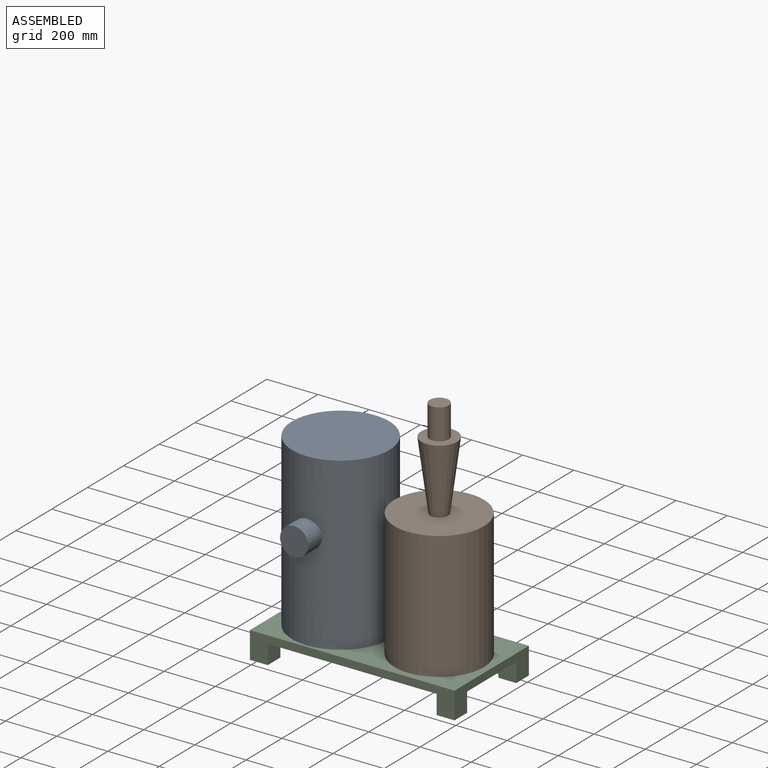
[diagram: assembled view]
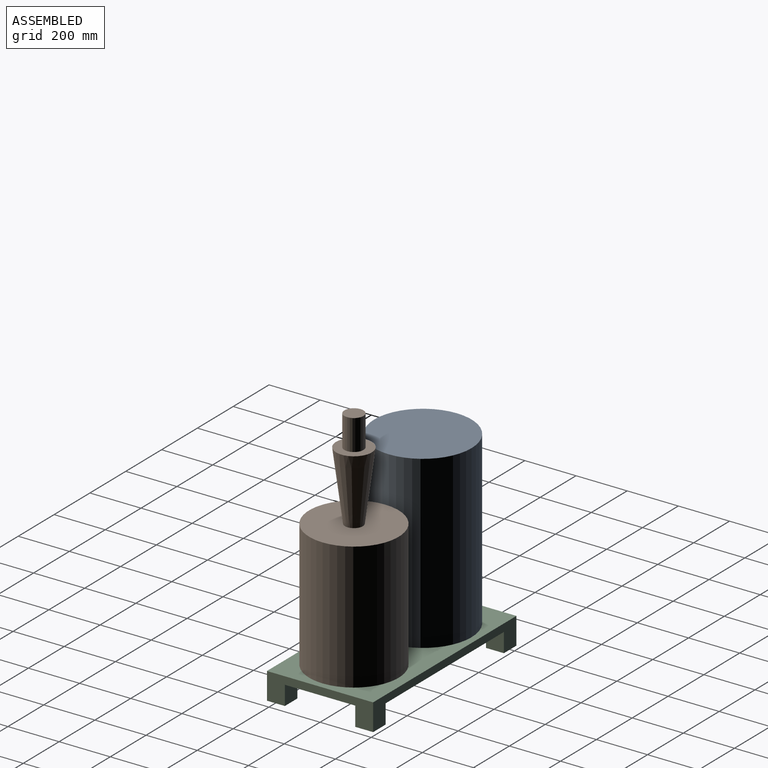
[diagram: assembled view, second angle]
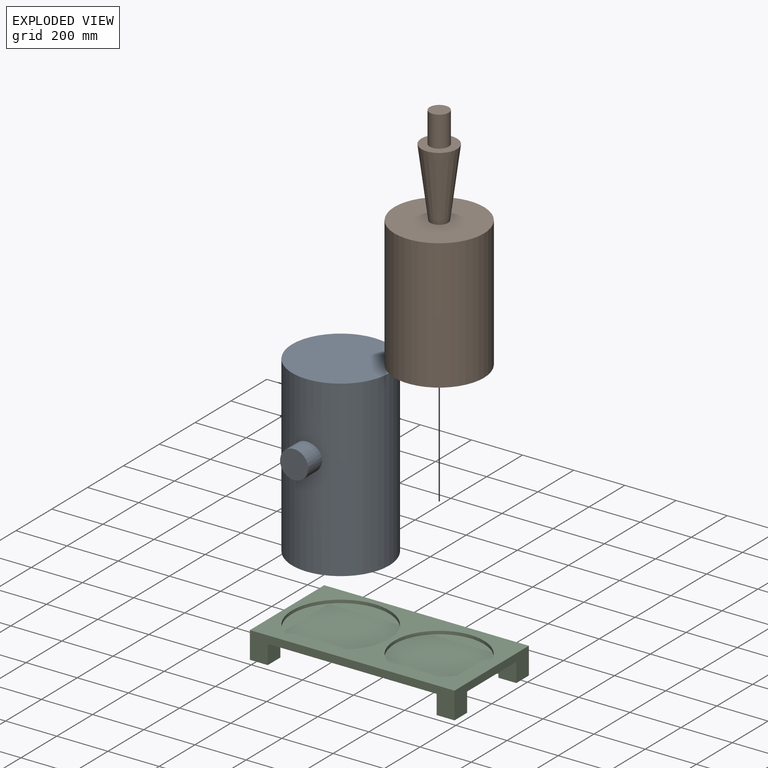
[diagram: exploded view]
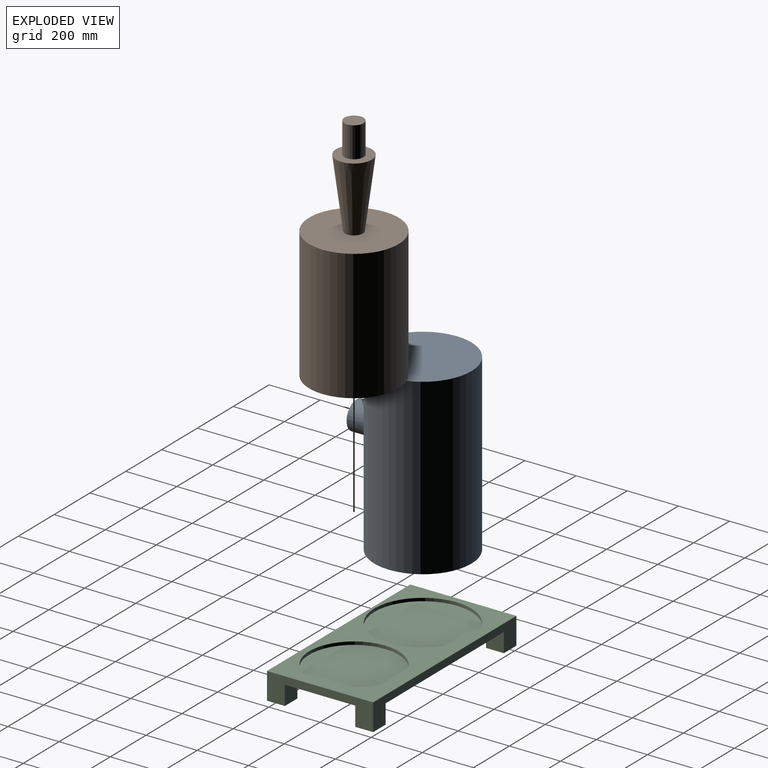
[diagram: exploded view, second angle]
ASSEMBLY  parts=3 mates=2
PART A: 5 faces, bbox 380x450x680 mm
  f0: cylinder r=190mm len=680mm, axis (0,0,-1), area 802177.5mm2, adj f1,f2,f3
  f1: plane 380x380mm, normal (0,0,1), area 113411.5mm2, adj f0
  f2: plane 380x380mm, normal (0,0,-1), area 113411.5mm2, adj f0
  f3: cylinder r=55mm len=110mm, axis (0,1,0), area 25587.7mm2, adj f0,f4
  f4: plane 110x110mm, normal (0,-1,0), area 9503.3mm2, adj f3
PART B: 7 faces, bbox 350x350x900 mm
  f0: cylinder r=175mm len=510mm, axis (0,0,-1), area 560774.3mm2, adj f1,f2
  f1: plane 350x350mm, normal (0,0,1), area 92362.8mm2, adj f0,f4
  f2: plane 350x350mm, normal (0,0,-1), area 96211.3mm2, adj f0
  f3: plane 140x140mm, normal (0,0,1), area 10975.9mm2, adj f4,f5
  f4: cone r=70mm half-angle=7.4deg, axis (0,0,1), area 89809.3mm2, adj f1,f3
  f5: cylinder r=37.5mm len=120mm, axis (0,0,-1), area 28274.3mm2, adj f3,f6
  f6: plane 75x75mm, normal (0,0,1), area 4417.9mm2, adj f5
PART C: 22 faces, bbox 800x415x105 mm
  f0: plane 800x105mm, normal (0,1,0), area 34500mm2, adj f1,f3,f4,f5,f17,f18,f20,f21
  f1: plane 415x105mm, normal (-1,0,0), area 22950mm2, adj f0,f2,f4,f5,f10,f12,f19,f21
  f2: plane 800x105mm, normal (0,-1,0), area 34500mm2, adj f1,f3,f4,f5,f11,f12,f14,f15
  f3: plane 415x105mm, normal (1,0,0), area 22950mm2, adj f0,f2,f4,f5,f13,f15,f16,f18
  f4: plane 800x415mm, normal (0,0,-1), area 312400mm2, adj f0,f1,f2,f3,f10,f11,f13,f14
  f5: plane 800x415mm, normal (0,0,1), area 122377.2mm2, adj f0,f1,f2,f3,f6,f8
  f6: cylinder r=175mm len=350mm, axis (0,0,-1), area 13194.7mm2, adj f5,f7
  f7: plane 350x350mm, normal (0,0,1), area 96211.3mm2, adj f6
  f8: cylinder r=190mm len=380mm, axis (0,0,-1), area 14325.7mm2, adj f5,f9
  f9: plane 380x380mm, normal (0,0,1), area 113411.5mm2, adj f8
  f10: plane 75x70mm, normal (0,1,0), area 5250mm2, adj f1,f4,f11,f12
  f11: plane 75x70mm, normal (1,0,0), area 5250mm2, adj f2,f4,f10,f12
  f12: plane 70x70mm, normal (0,0,-1), area 4900mm2, adj f1,f2,f10,f11
  f13: plane 75x70mm, normal (0,1,0), area 5250mm2, adj f3,f4,f14,f15
  f14: plane 75x70mm, normal (-1,0,0), area 5250mm2, adj f2,f4,f13,f15
  f15: plane 70x70mm, normal (0,0,-1), area 4900mm2, adj f2,f3,f13,f14
  f16: plane 75x70mm, normal (0,-1,0), area 5250mm2, adj f3,f4,f17,f18
  f17: plane 75x70mm, normal (-1,0,0), area 5250mm2, adj f0,f4,f16,f18
  f18: plane 70x70mm, normal (0,0,-1), area 4900mm2, adj f0,f3,f16,f17
  f19: plane 75x70mm, normal (0,-1,0), area 5250mm2, adj f1,f4,f20,f21
  f20: plane 75x70mm, normal (1,0,0), area 5250mm2, adj f0,f4,f19,f21
  f21: plane 70x70mm, normal (0,0,-1), area 4900mm2, adj f0,f1,f19,f20
PLACE A t=(15,-7.5,18)mm
PLACE B t=(15,-7.5,18)mm
PLACE C t=(15,-7.5,18)mm
MATE fastened C.f8 <-> A.f0  axis (0,0,1) through (-185,-7.5,18)mm
MATE fastened C.f6 <-> B.f0  axis (0,0,1) through (200,-7.5,18)mm
